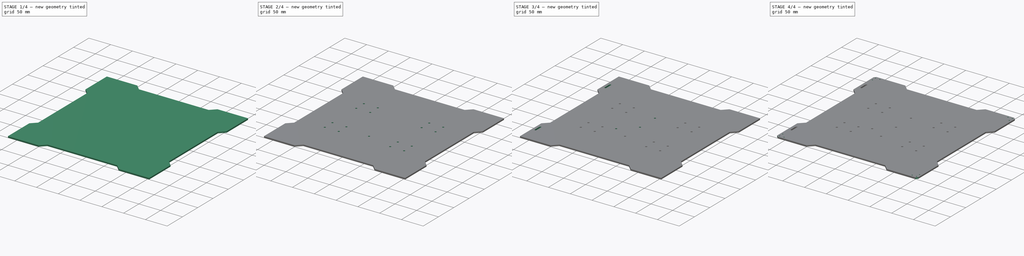
[diagram: build sequence overview — one tinted view per stage of 4, left to right]
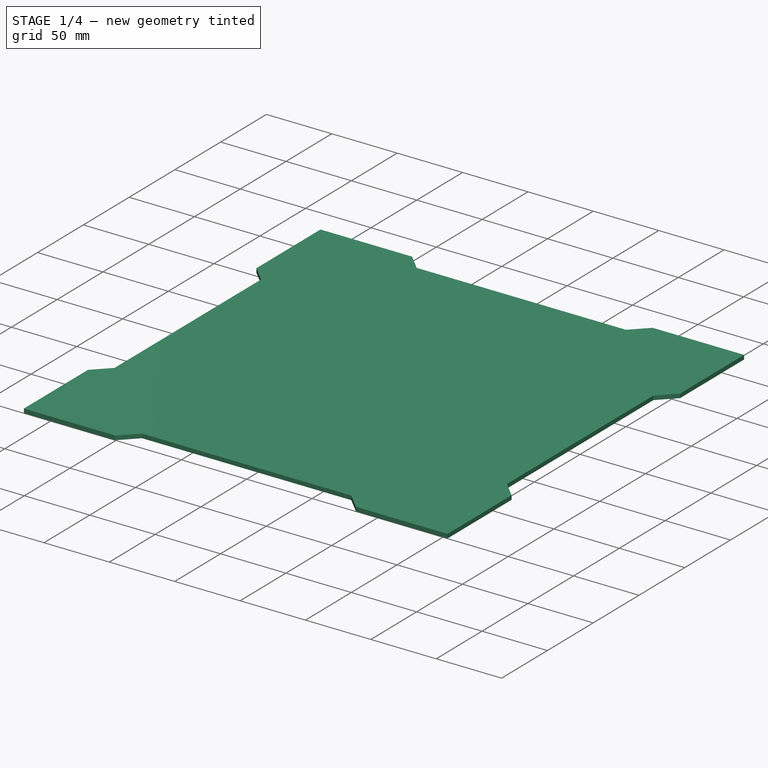
[diagram: stage 1 of 4 — iso view after this stage's code; geometry added in this stage tinted green]
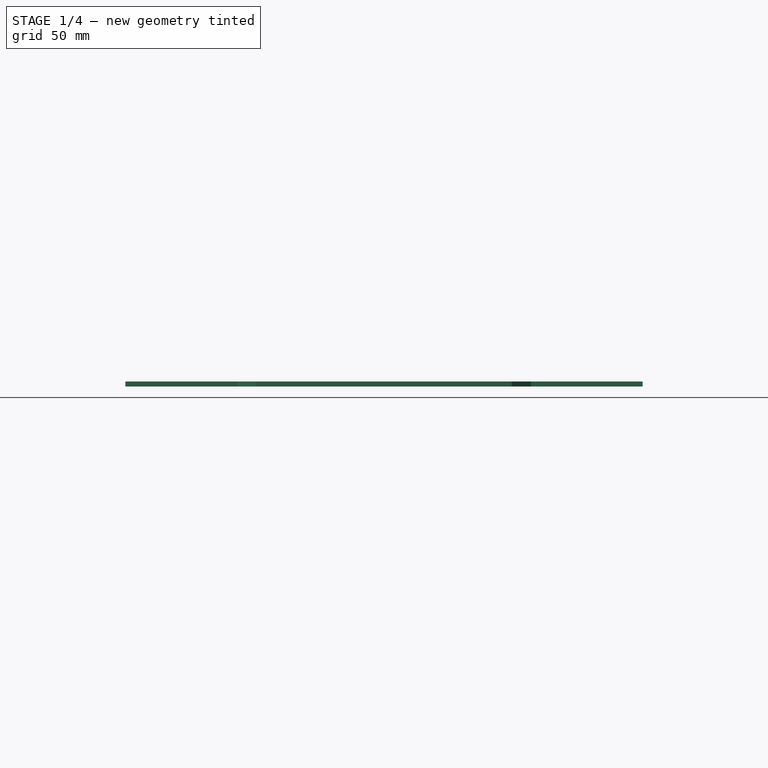
[diagram: stage 1 of 4 — front view after this stage's code; geometry added in this stage tinted green]
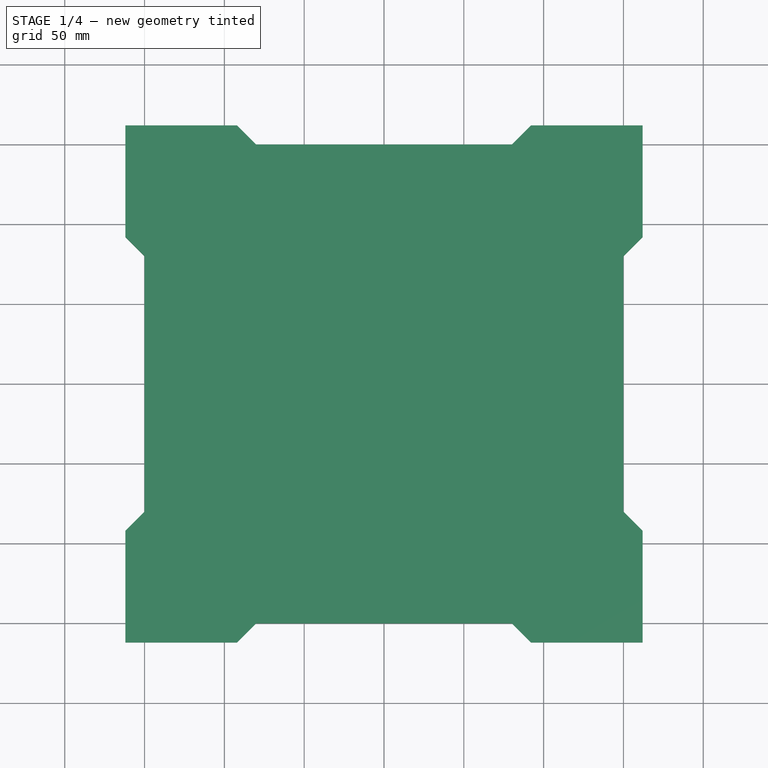
[diagram: stage 1 of 4 — top view after this stage's code; geometry added in this stage tinted green]
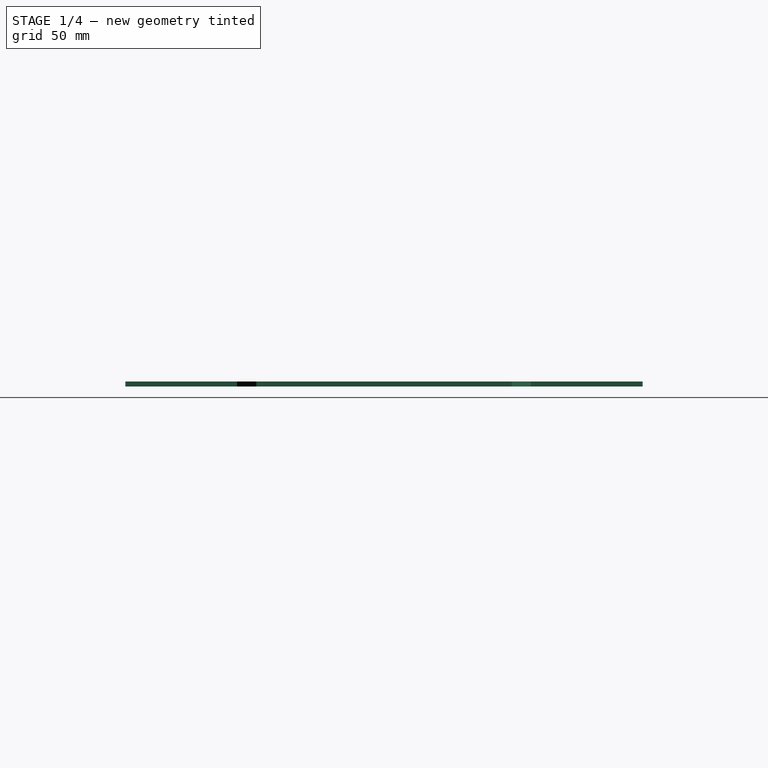
[diagram: stage 1 of 4 — right view after this stage's code; geometry added in this stage tinted green]
FCSTD DOCUMENT
Label: Y_Bed
objects: Sketcher::SketchObject×8, PartDesign::Pocket×6, PartDesign::LinearPattern×3, PartDesign::Mirrored×3, PartDesign::PolarPattern×2, PartDesign::Pad×1, PartDesign::MultiTransform×1, PartDesign::Chamfer×1
note: 32 computed .brp shape members not serialized (recipe doc carries the construction recipe); baked Part::Feature solids carry a one-line shape summary decoded from their .brp

FEATURE [Sketcher::SketchObject] Sketch
  sketch-geometry (5):
    g0: LineSegment StartX=-162 StartY=162 StartZ=0 EndX=162 EndY=162 EndZ=0
    g1: LineSegment StartX=162 StartY=162 StartZ=0 EndX=162 EndY=-162 EndZ=0
    g2: LineSegment StartX=162 StartY=-162 StartZ=0 EndX=-162 EndY=-162 EndZ=0
    g3: LineSegment StartX=-162 StartY=-162 StartZ=0 EndX=-162 EndY=162 EndZ=0
    g4: GeomPoint [constr] X=0 Y=0 Z=0
  constraints (12):
    c: Coincident(g0,g1)
    c: Coincident(g1,g2)
    c: Coincident(g2,g3)
    c: Coincident(g3,g0)
    c: Horizontal(g0)
    c: Horizontal(g2)
    c: Vertical(g1)
    c: Vertical(g3)
    c: Symmetric(g2,g0,g4)
    c: Coincident(g4,g-1)
    c: Equal(g0,g3)
    c: DistanceX(g1) = 162
FEATURE [PartDesign::Pad] Pad
  Length = 3.18
  Length2 = 100
  Sketch = -> Sketch
  Type = 0
FEATURE [Sketcher::SketchObject] Sketch001
  ExternalGeometry = -> [Pad]
  Placement = pos=(0,0,3.18) rot=(0,0,1;0rad)
  Support = -> Pad [Face6]
  sketch-geometry (4):
    g0: LineSegment StartX=-80 StartY=-150 StartZ=0 EndX=80 EndY=-150 EndZ=0
    g1: LineSegment StartX=80 StartY=-150 StartZ=0 EndX=92 EndY=-162 EndZ=0
    g2: LineSegment StartX=92 StartY=-162 StartZ=0 EndX=-92 EndY=-162 EndZ=0
    g3: LineSegment StartX=-92 StartY=-162 StartZ=0 EndX=-80 EndY=-150 EndZ=0
  constraints (12):
    c: Coincident(g0,g1)
    c: Coincident(g1,g2)
    c: Coincident(g2,g3)
    c: Coincident(g3,g0)
    c: Horizontal(g0)
    c: Horizontal(g2)
    c: Equal(g3,g1)
    c: Symmetric(g2,g1,g-2)
    c: Angle(g2,g3) = 0.785398
    c: DistanceY(g1,g0) = 12
    c: DistanceX(g1) = 92
    c: PointOnObject(g-3,g2)
FEATURE [PartDesign::Pocket] Pocket
  Length = 5
  Sketch = -> Sketch001
  Type = 1
FEATURE [PartDesign::PolarPattern] PolarPattern
  Angle = 360
  Occurrences = 4
  Originals = -> [Pocket]
  StdAxis = Z
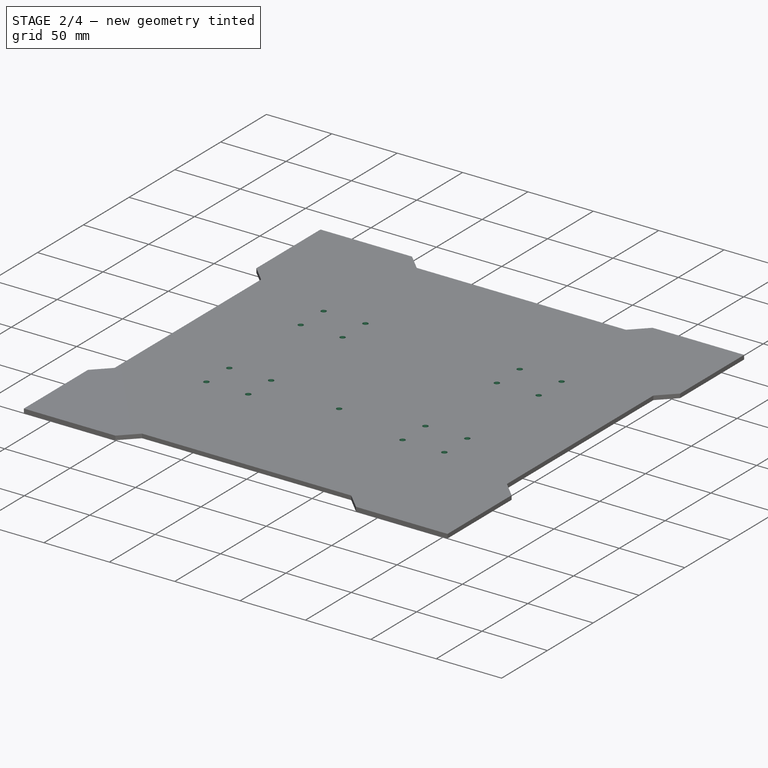
[diagram: stage 2 of 4 — iso view after this stage's code; geometry added in this stage tinted green]
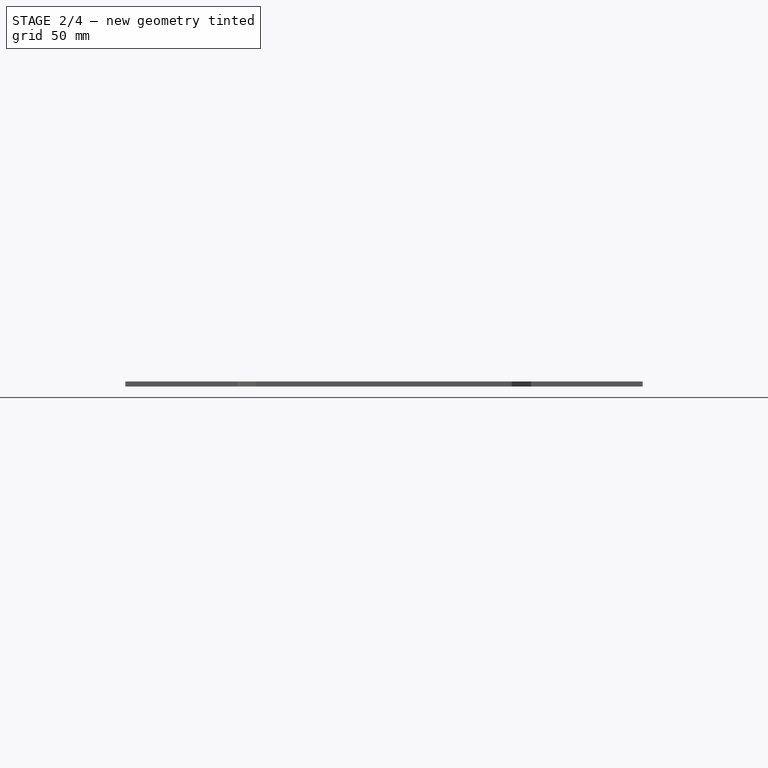
[diagram: stage 2 of 4 — front view after this stage's code; geometry added in this stage tinted green]
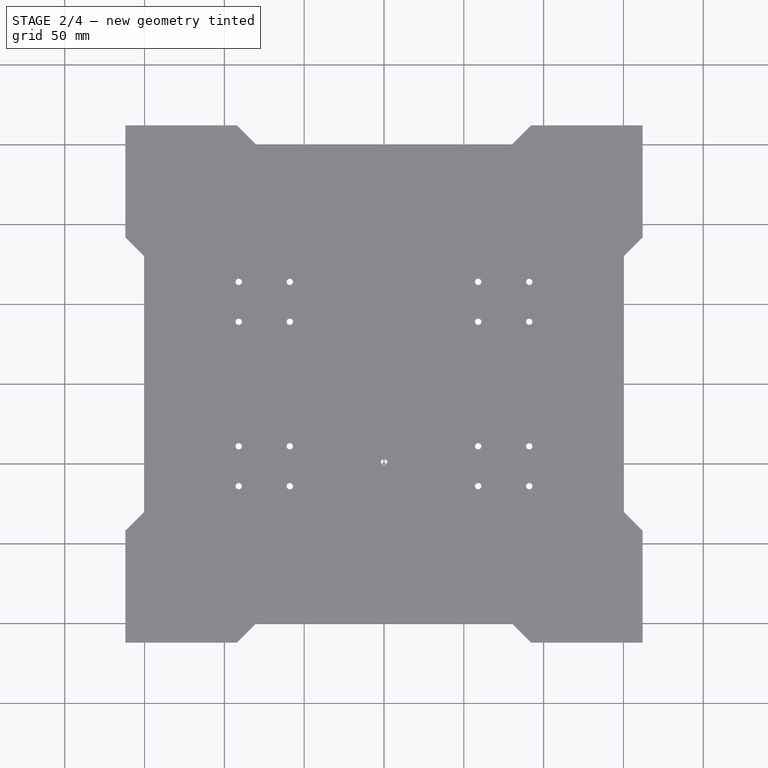
[diagram: stage 2 of 4 — top view after this stage's code; geometry added in this stage tinted green]
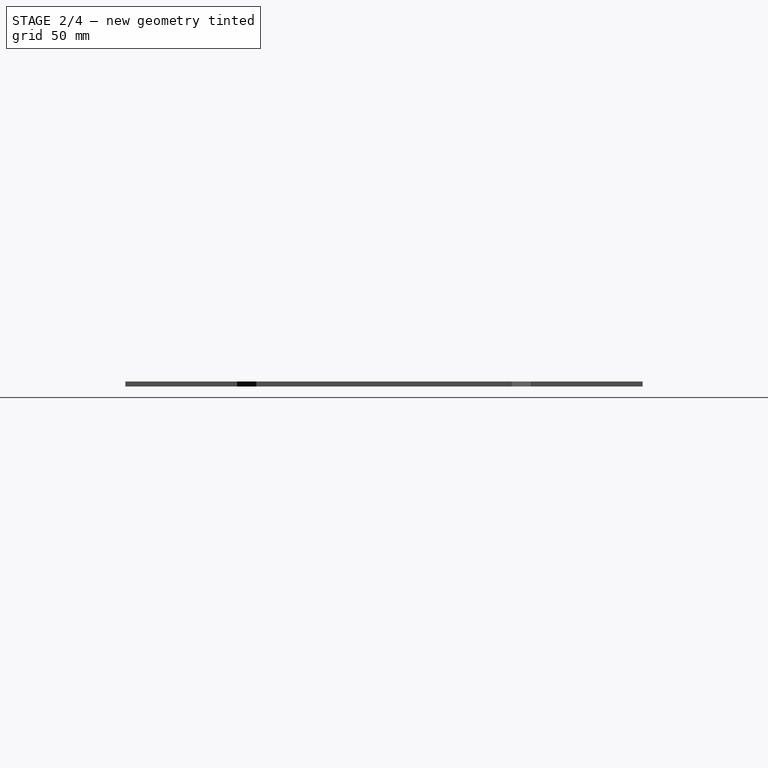
[diagram: stage 2 of 4 — right view after this stage's code; geometry added in this stage tinted green]
FEATURE [Sketcher::SketchObject] Sketch002
  Placement = pos=(0,0,3.18) rot=(0,0,1;0rad)
  Support = -> PolarPattern [Face4]
  sketch-geometry (5):
    g0: ArcOfCircle CenterX=0 CenterY=0 CenterZ=0 NormalX=0 NormalY=0 NormalZ=1 Radius=40 StartAngle=1.7467 EndAngle=3.88256
    g1: LineSegment StartX=7 StartY=-39.3827 StartZ=0 EndX=7 EndY=39.3827 EndZ=0
    g2: LineSegment StartX=-7 StartY=39.3827 StartZ=0 EndX=-7 EndY=-27 EndZ=0
    g3: LineSegment StartX=-7 StartY=-27 StartZ=0 EndX=-29.5127 EndY=-27 EndZ=0
    g4: ArcOfCircle CenterX=0 CenterY=0 CenterZ=0 NormalX=0 NormalY=0 NormalZ=1 Radius=40 StartAngle=4.88829 EndAngle=7.67808
  constraints (15):
    c: Coincident(g0,g-1)
    c: Vertical(g1)
    c: Vertical(g2)
    c: Coincident(g2,g3)
    c: Horizontal(g3)
    c: Coincident(g0,g2)
    c: Coincident(g4,g1)
    c: Equal(g0,g4)
    c: Coincident(g0,g3)
    c: Coincident(g4,g1)
    c: Coincident(g0,g4)
    c: Radius(g4) = 40
    c: DistanceY(g0) = -27
    c: DistanceX(g2) = -7
    c: DistanceX(g1) = 7
FEATURE [Sketcher::SketchObject] Sketch003
  Placement = pos=(0,0,3.18) rot=(0,0,1;0rad)
  Support = -> PolarPattern [Face4]
  sketch-geometry (1):
    g0: Circle CenterX=-91 CenterY=-64 CenterZ=0 NormalX=0 NormalY=0 NormalZ=1 Radius=2
  constraints (3):
    c: DistanceX(g0) = -91
    c: DistanceY(g0) = -64
    c: Radius(g0) = 2
FEATURE [PartDesign::Pocket] Pocket001
  Length = 5
  Sketch = -> Sketch003
  Type = 1
FEATURE [PartDesign::LinearPattern] LinearPattern
  Length = 32
  Occurrences = 2
  StdDirection = X
FEATURE [PartDesign::LinearPattern] LinearPattern001
  Direction = -> Pocket001 [Edge34]
  Length = 25
  Occurrences = 2
  Reversed = true
FEATURE [PartDesign::Mirrored] Mirrored
  StdMirrorPlane = YZ
FEATURE [PartDesign::Mirrored] Mirrored001
  StdMirrorPlane = XZ
FEATURE [PartDesign::MultiTransform] MultiTransform
  Originals = -> [Pocket001]
  Transformations = -> [LinearPattern,LinearPattern001,Mirrored,Mirrored001]
FEATURE [Sketcher::SketchObject] Sketch004
  ExternalGeometry = -> [MultiTransform]
  Placement = pos=(0,0,3.18) rot=(0,0,1;0rad)
  Support = -> MultiTransform [Face4]
  sketch-geometry (1):
    g0: Circle CenterX=0 CenterY=-49 CenterZ=0 NormalX=0 NormalY=0 NormalZ=1 Radius=2
  constraints (3):
    c: PointOnObject(g0,g-2)
    c: DistanceY(g0) = -49
    c: Equal(g-3,g0)
FEATURE [PartDesign::Pocket] Pocket002
  Length = 5
  Sketch = -> Sketch004
  Type = 1
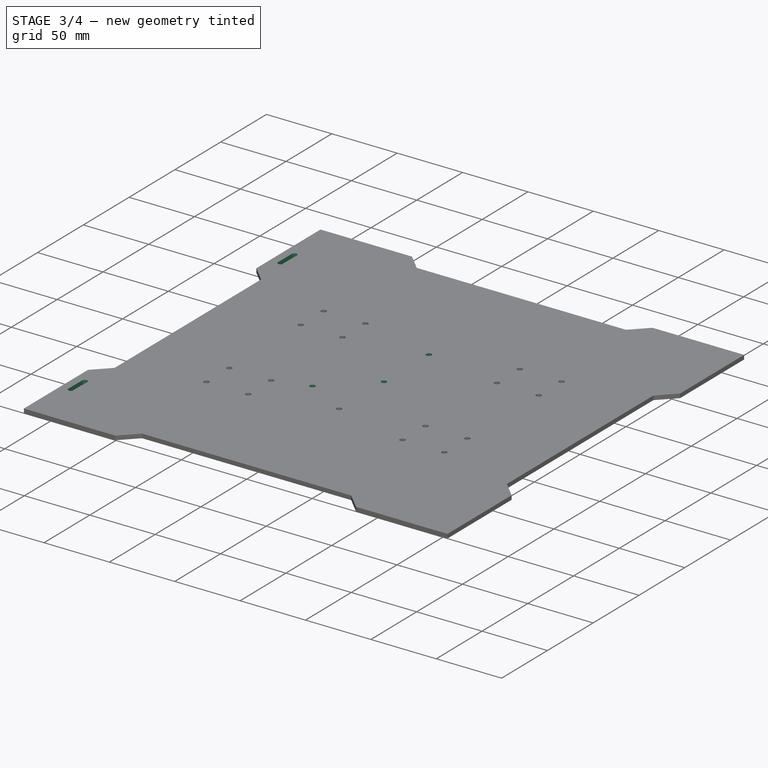
[diagram: stage 3 of 4 — iso view after this stage's code; geometry added in this stage tinted green]
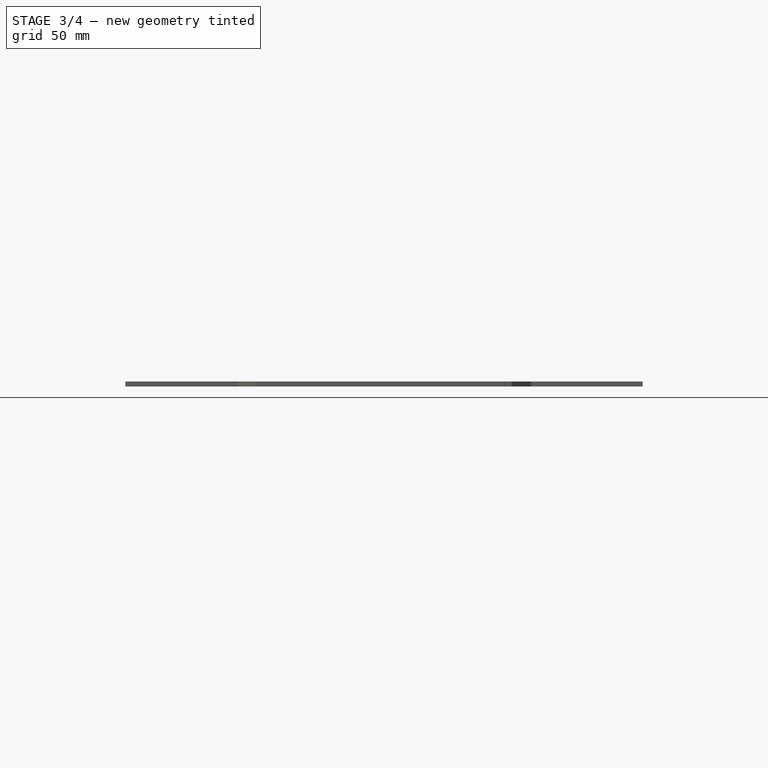
[diagram: stage 3 of 4 — front view after this stage's code; geometry added in this stage tinted green]
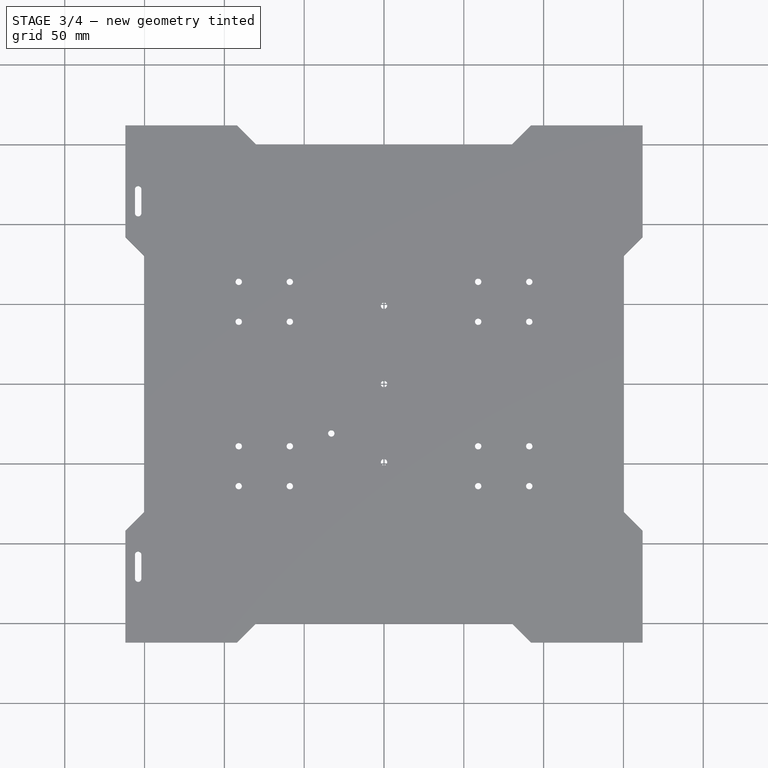
[diagram: stage 3 of 4 — top view after this stage's code; geometry added in this stage tinted green]
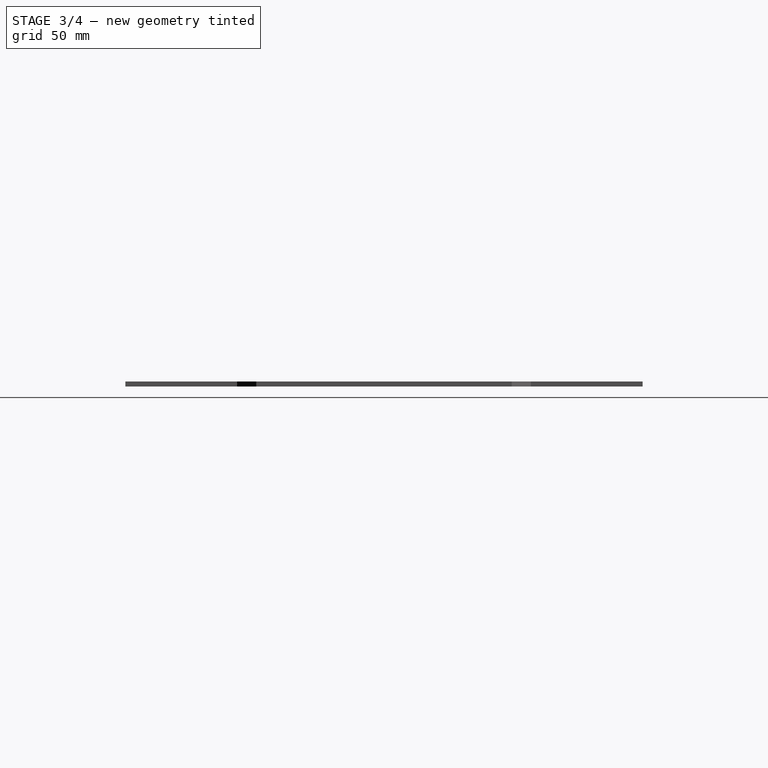
[diagram: stage 3 of 4 — right view after this stage's code; geometry added in this stage tinted green]
FEATURE [PartDesign::LinearPattern] LinearPattern002
  Direction = -> Pocket002 [Edge74]
  Length = 98
  Occurrences = 3
  Originals = -> [Pocket002]
  Reversed = true
FEATURE [Sketcher::SketchObject] Sketch005
  ExternalGeometry = -> [LinearPattern002]
  Placement = pos=(0,0,3.18) rot=(0,0,1;0rad)
  Support = -> LinearPattern002 [Face4]
  sketch-geometry (1):
    g0: Circle CenterX=-33 CenterY=-31 CenterZ=0 NormalX=0 NormalY=0 NormalZ=1 Radius=2
  constraints (3):
    c: DistanceX(g0) = -33
    c: DistanceY(g0) = -31
    c: Equal(g-3,g0)
FEATURE [PartDesign::Pocket] Pocket003
  Length = 5
  Sketch = -> Sketch005
  Type = 1
FEATURE [Sketcher::SketchObject] Sketch006
  Placement = pos=(0,0,3.18) rot=(0,0,1;0rad)
  Support = -> Pocket003 [Face4]
  sketch-geometry (4):
    g0: LineSegment StartX=-156 StartY=-107 StartZ=0 EndX=-156 EndY=-122 EndZ=0
    g1: ArcOfCircle CenterX=-154 CenterY=-122 CenterZ=0 NormalX=0 NormalY=0 NormalZ=1 Radius=2 StartAngle=3.14159 EndAngle=6.28319
    g2: LineSegment StartX=-152 StartY=-122 StartZ=0 EndX=-152 EndY=-107 EndZ=0
    g3: ArcOfCircle CenterX=-154 CenterY=-107 CenterZ=0 NormalX=0 NormalY=0 NormalZ=1 Radius=2 StartAngle=0 EndAngle=3.1416
  constraints (11):
    c: Vertical(g0)
    c: Tangent(g0,g1)
    c: Tangent(g1,g2)
    c: Tangent(g2,g3)
    c: Coincident(g3,g0)
    c: Tangent(g0,g3)
    c: Radius(g1) = 2
    c: Vertical(g2)
    c: DistanceY(g0) = -15
    c: DistanceX(g3) = -154
    c: DistanceY(g3) = -107
FEATURE [PartDesign::Pocket] Pocket004
  Length = 5
  Sketch = -> Sketch006
  Type = 1
FEATURE [PartDesign::Mirrored] Mirrored002
  Originals = -> [Pocket004]
  StdMirrorPlane = XZ
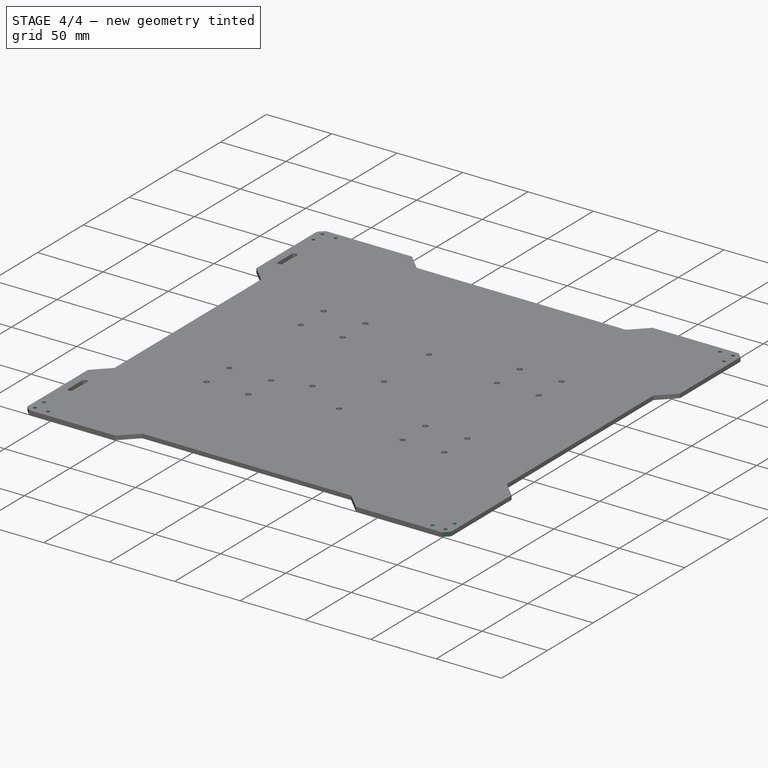
[diagram: stage 4 of 4 — iso view after this stage's code; geometry added in this stage tinted green]
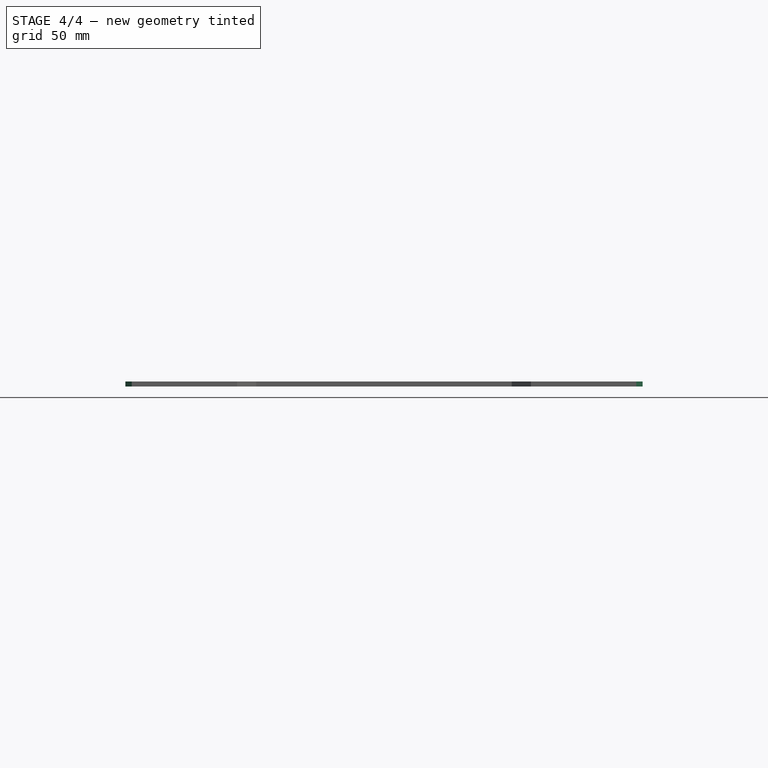
[diagram: stage 4 of 4 — front view after this stage's code; geometry added in this stage tinted green]
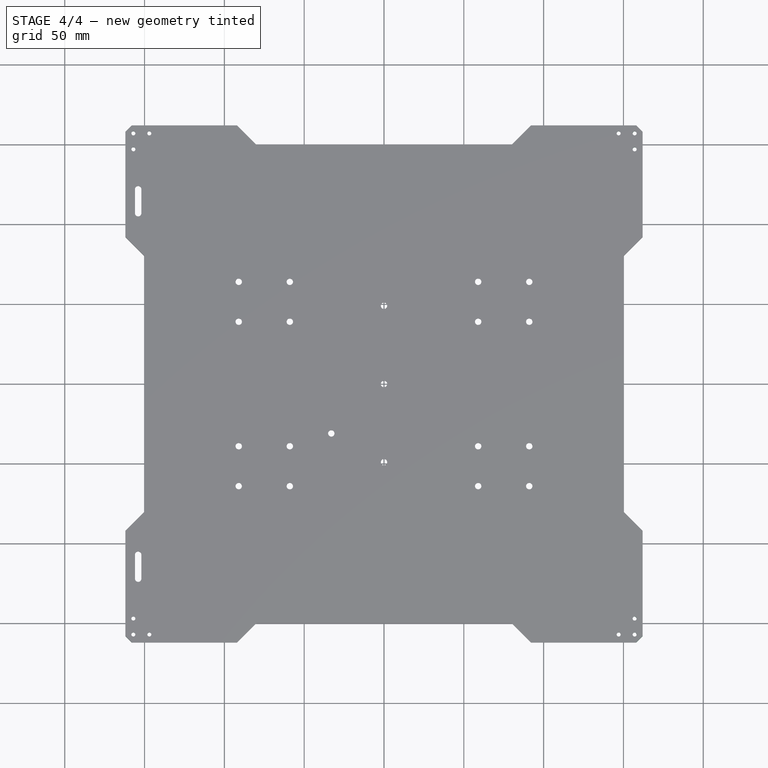
[diagram: stage 4 of 4 — top view after this stage's code; geometry added in this stage tinted green]
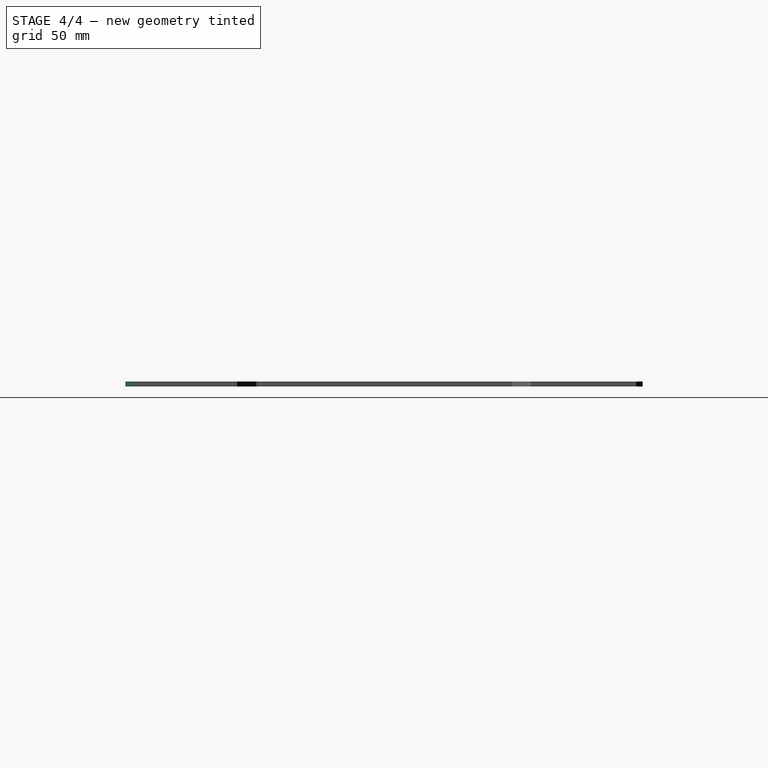
[diagram: stage 4 of 4 — right view after this stage's code; geometry added in this stage tinted green]
FEATURE [Sketcher::SketchObject] Sketch007
  Placement = pos=(0,0,3.18) rot=(0,0,1;0rad)
  Support = -> Mirrored002 [Face4]
  sketch-geometry (5):
    g0: LineSegment [constr] StartX=-157 StartY=-147 StartZ=0 EndX=-157 EndY=-157 EndZ=0
    g1: LineSegment [constr] StartX=-157 StartY=-157 StartZ=0 EndX=-147 EndY=-157 EndZ=0
    g2: Circle CenterX=-157 CenterY=-147 CenterZ=0 NormalX=0 NormalY=0 NormalZ=1 Radius=1.25
    g3: Circle CenterX=-157 CenterY=-157 CenterZ=0 NormalX=0 NormalY=0 NormalZ=1 Radius=1.25
    g4: Circle CenterX=-147 CenterY=-157 CenterZ=0 NormalX=0 NormalY=0 NormalZ=1 Radius=1.25
  constraints (13):
    c: Vertical(g0)
    c: Coincident(g0,g1)
    c: Horizontal(g1)
    c: Equal(g0,g1)
    c: Coincident(g2,g0)
    c: Coincident(g3,g0)
    c: Coincident(g4,g1)
    c: Equal(g4,g3)
    c: Equal(g3,g2)
    c: Radius(g4) = 1.25
    c: DistanceX(g0) = -157
    c: DistanceY(g0) = -157
    c: DistanceY(g0) = -10
FEATURE [PartDesign::Pocket] Pocket005
  Length = 5
  Sketch = -> Sketch007
  Type = 1
FEATURE [PartDesign::PolarPattern] PolarPattern001
  Angle = 360
  Occurrences = 4
  Originals = -> [Pocket005]
  StdAxis = Z
FEATURE [PartDesign::Chamfer] Chamfer
  Base = -> PolarPattern001 [Edge2,Edge199,Edge204,Edge210]
  Size = 4
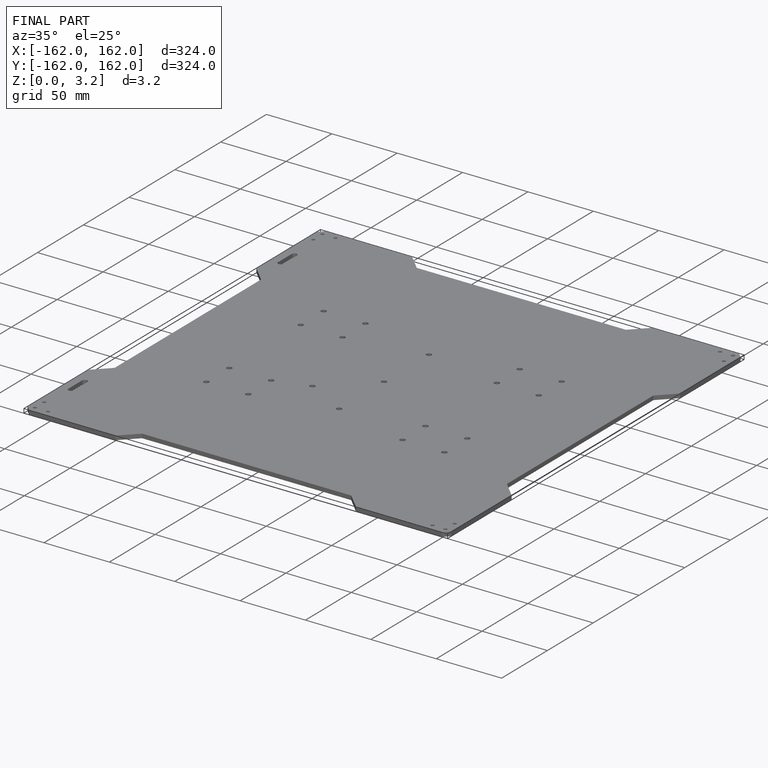
[diagram: finished part — iso view with bounding-box wireframe]
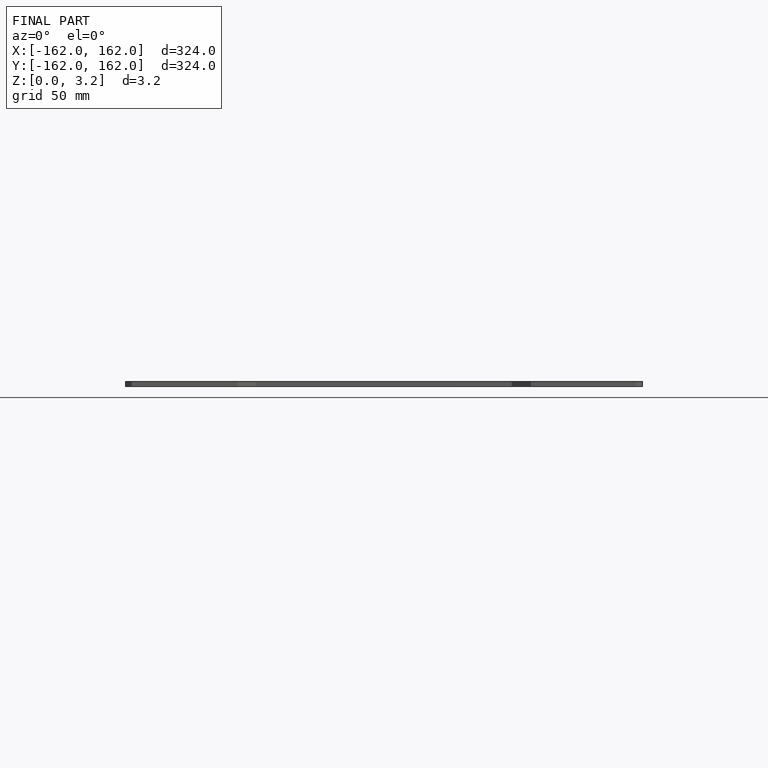
[diagram: finished part — front view with bounding-box wireframe]
